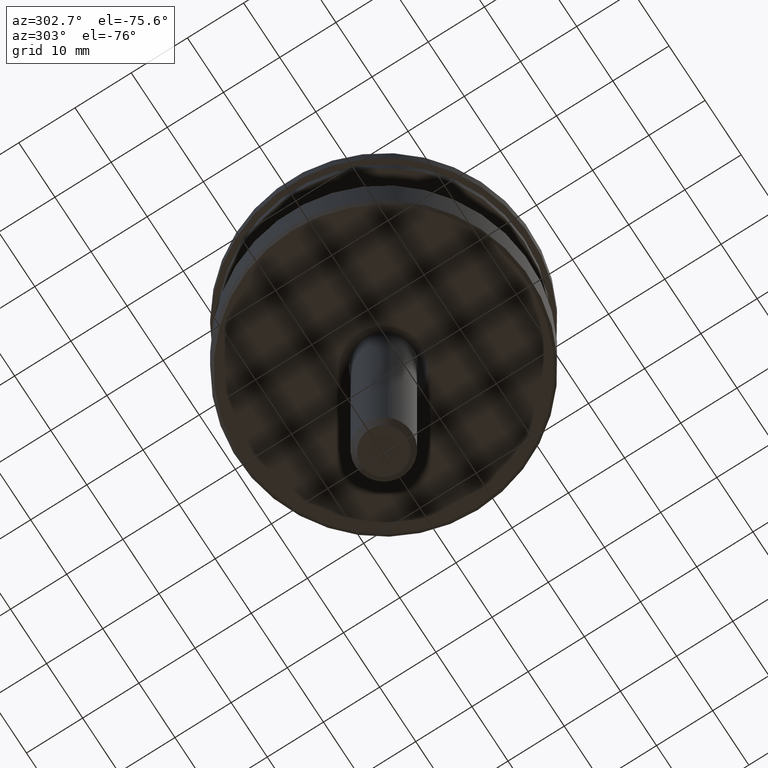
[diagram: clean part render]
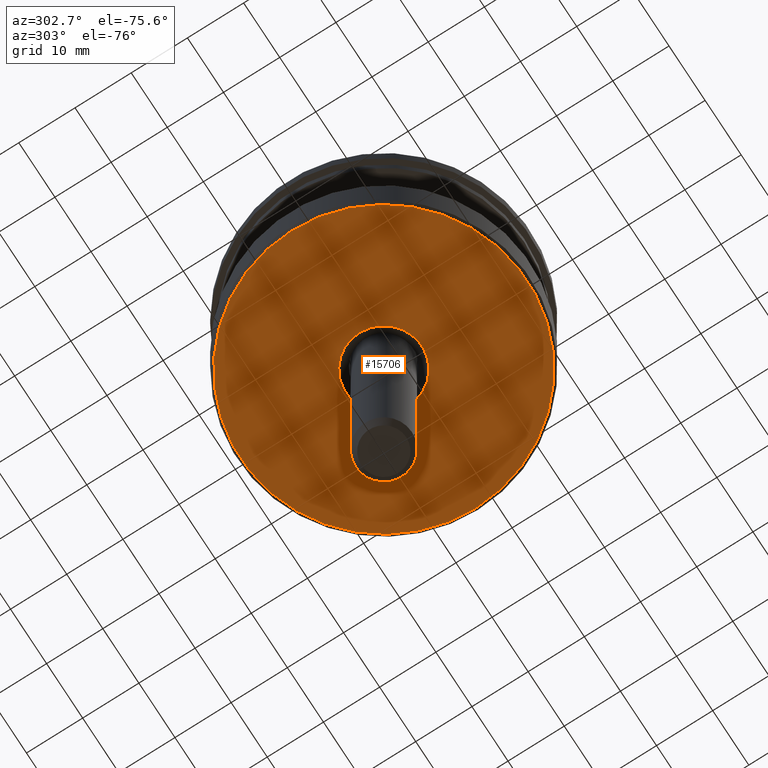
[diagram: same view with one face highlighted and labeled with its STEP entity id]
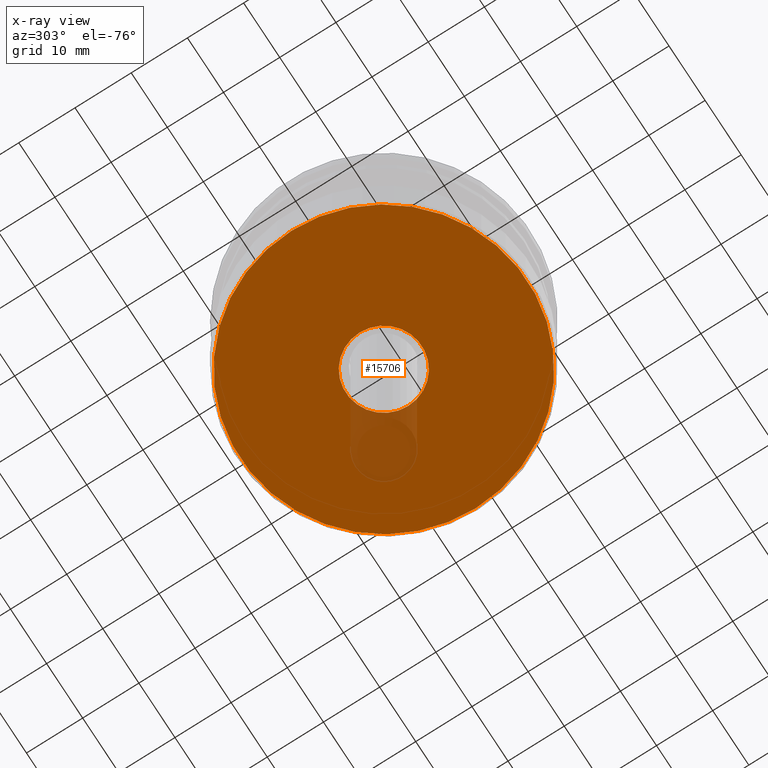
[diagram: x-ray of the same camera — body ghosted, the highlighted face saturated]
A machine part, auxiliary view. The second image highlights one B-rep face of the part: STEP entity #15706.
The next image is the same camera in x-ray: the body ghosted, the highlighted face saturated — about 5% of this face is hidden behind the body in this view.
In plain terms, the highlighted planar face has unit normal (0, 0, 1).
Its self-contained STEP definition (entity closure, byte-faithful):
#182 = VERTEX_POINT ( 'NONE', #10325 ) ;
#1288 = CARTESIAN_POINT ( 'NONE',  ( 25.49999999999999600, 0.0000000000000000000, 0.0000000000000000000 ) ) ;
#3284 = EDGE_CURVE ( 'NONE', #182, #182, #15968, .T. ) ;
#3556 = CARTESIAN_POINT ( 'NONE',  ( 0.0000000000000000000, 0.0000000000000000000, 0.0000000000000000000 ) ) ;
#3762 = PLANE ( 'NONE',  #16887 ) ;
#5045 = DIRECTION ( 'NONE',  ( -0.0000000000000000000, -0.0000000000000000000, -1.000000000000000000 ) ) ;
#5495 = DIRECTION ( 'NONE',  ( 1.000000000000000000, 0.0000000000000000000, 0.0000000000000000000 ) ) ;
#7355 = CIRCLE ( 'NONE', #13994, 25.49999999999999600 ) ;
#7948 = FACE_BOUND ( 'NONE', #12102, .T. ) ;
#9344 = DIRECTION ( 'NONE',  ( 0.0000000000000000000, 0.0000000000000000000, 1.000000000000000000 ) ) ;
#9800 = AXIS2_PLACEMENT_3D ( 'NONE', #13356, #9344, #5495 ) ;
#10325 = CARTESIAN_POINT ( 'NONE',  ( 6.749999999999992000, 0.0000000000000000000, 0.0000000000000000000 ) ) ;
#11506 = EDGE_LOOP ( 'NONE', ( #16216 ) ) ;
#11859 = EDGE_CURVE ( 'NONE', #14864, #14864, #7355, .T. ) ;
#12102 = EDGE_LOOP ( 'NONE', ( #14324 ) ) ;
#12907 = DIRECTION ( 'NONE',  ( 1.000000000000000000, 0.0000000000000000000, 0.0000000000000000000 ) ) ;
#13002 = CARTESIAN_POINT ( 'NONE',  ( 0.0000000000000000000, 0.0000000000000000000, 0.0000000000000000000 ) ) ;
#13356 = CARTESIAN_POINT ( 'NONE',  ( 0.0000000000000000000, 0.0000000000000000000, 0.0000000000000000000 ) ) ;
#13853 = FACE_OUTER_BOUND ( 'NONE', #11506, .T. ) ;
#13994 = AXIS2_PLACEMENT_3D ( 'NONE', #3556, #5045, #12907 ) ;
#14324 = ORIENTED_EDGE ( 'NONE', *, *, #3284, .T. ) ;
#14864 = VERTEX_POINT ( 'NONE', #1288 ) ;
#15494 = DIRECTION ( 'NONE',  ( 0.0000000000000000000, 0.0000000000000000000, 1.000000000000000000 ) ) ;
#15706 = ADVANCED_FACE ( 'NONE', ( #13853, #7948 ), #3762, .F. ) ;
#15968 = CIRCLE ( 'NONE', #9800, 6.749999999999992000 ) ;
#16216 = ORIENTED_EDGE ( 'NONE', *, *, #11859, .T. ) ;
#16821 = DIRECTION ( 'NONE',  ( 1.000000000000000000, 0.0000000000000000000, -0.0000000000000000000 ) ) ;
#16887 = AXIS2_PLACEMENT_3D ( 'NONE', #13002, #15494, #16821 ) ;